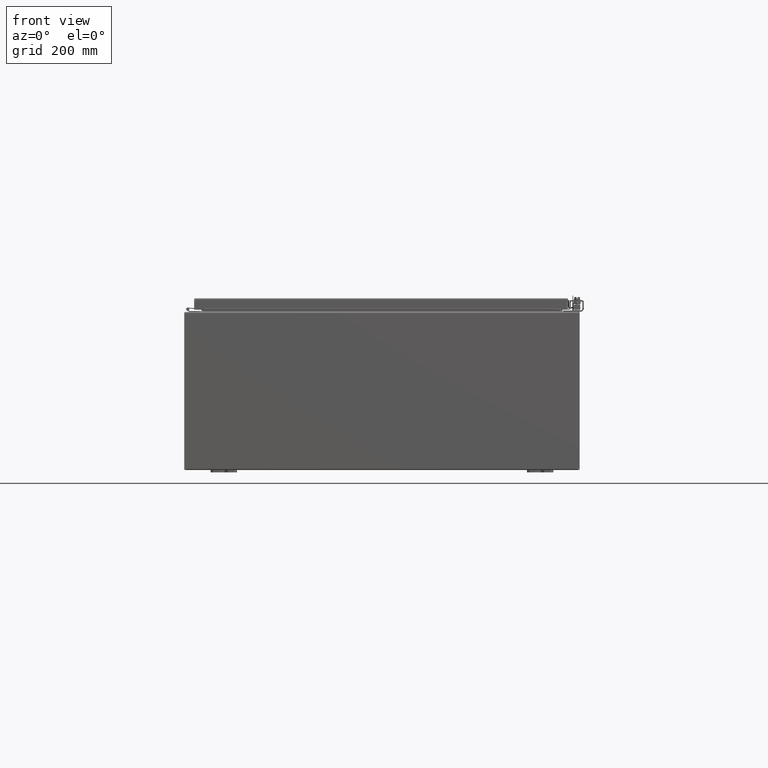
[diagram: clean part render]
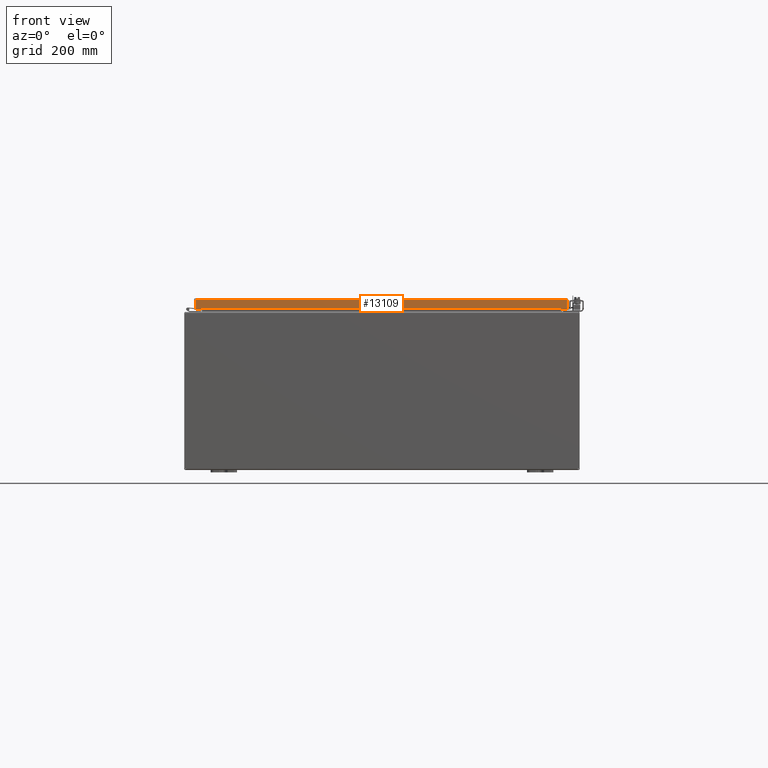
[diagram: same view with one face highlighted and labeled with its STEP entity id]
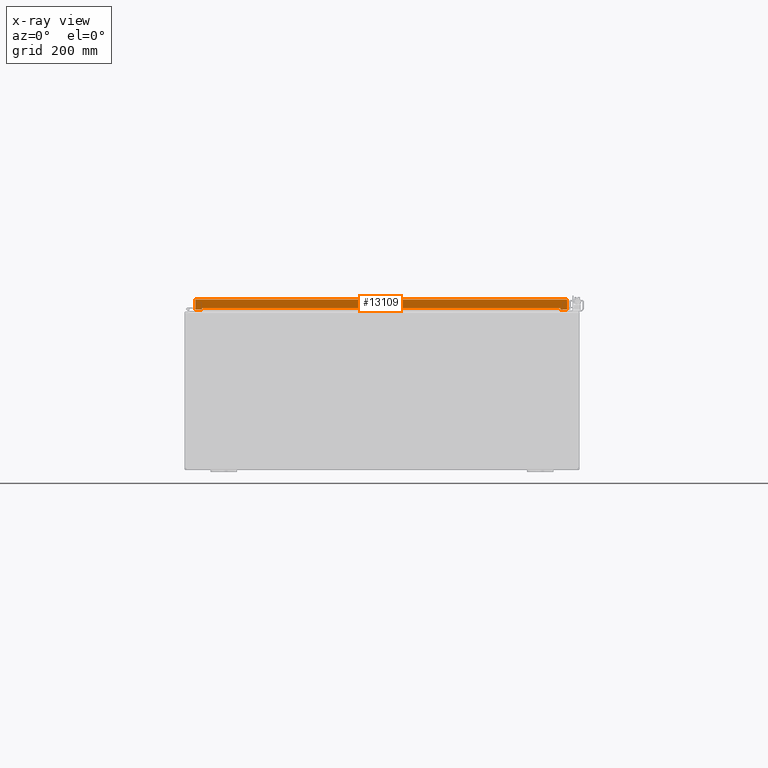
[diagram: x-ray of the same camera — body ghosted, the highlighted face saturated]
A machine part, front view. The second image highlights one B-rep face of the part: STEP entity #13109.
The next image is the same camera in x-ray: the body ghosted, the highlighted face saturated — about 0% of this face is hidden behind the body in this view.
In plain terms, the highlighted planar face has unit normal (-0, 1, -0).
Its self-contained STEP definition (entity closure, byte-faithful):
#11994=CARTESIAN_POINT('',(-13.602451456543964,20.093750000000043,0.76974999999999));
#11995=VERTEX_POINT('',#11994);
#12020=CARTESIAN_POINT('',(13.602451456543964,20.093750000000043,0.769749999999996));
#12021=VERTEX_POINT('',#12020);
#12076=CARTESIAN_POINT('',(-13.602451456543964,20.093750000000043,0.76974999999999));
#12077=DIRECTION('',(1.0,0.0,0.0));
#12078=VECTOR('',#12077,27.204902913087928);
#12079=LINE('',#12076,#12078);
#12080=EDGE_CURVE('',#11995,#12021,#12079,.T.);
#12832=CARTESIAN_POINT('',(13.602451456543964,20.093750000000043,0.769549999999996));
#12833=VERTEX_POINT('',#12832);
#12840=CARTESIAN_POINT('',(13.602451456543964,20.093750000000046,0.769749999999996));
#12841=DIRECTION('',(0.0,0.0,-1.0));
#12842=VECTOR('',#12841,0.0002);
#12843=LINE('',#12840,#12842);
#12844=EDGE_CURVE('',#12021,#12833,#12843,.T.);
#12864=CARTESIAN_POINT('',(13.602651456543965,20.09375000000005,0.874999999999997));
#12865=VERTEX_POINT('',#12864);
#12872=CARTESIAN_POINT('',(13.602651456543965,20.093750000000043,0.769549999999996));
#12873=VERTEX_POINT('',#12872);
#12874=CARTESIAN_POINT('',(13.602651456543965,20.093750000000046,0.769549999999996));
#12875=DIRECTION('',(0.0,0.0,1.0));
#12876=VECTOR('',#12875,0.105450000000001);
#12877=LINE('',#12874,#12876);
#12878=EDGE_CURVE('',#12873,#12865,#12877,.T.);
#12901=CARTESIAN_POINT('',(13.602451456543964,20.093750000000043,0.769549999999996));
#12902=DIRECTION('',(1.0,0.0,0.0));
#12903=VECTOR('',#12902,0.000200000000003);
#12904=LINE('',#12901,#12903);
#12905=EDGE_CURVE('',#12833,#12873,#12904,.T.);
#12991=CARTESIAN_POINT('',(-13.602651456543965,20.093750000000043,0.76954999999999));
#12992=VERTEX_POINT('',#12991);
#12999=CARTESIAN_POINT('',(-13.602651456543965,20.09375000000005,0.874999999999991));
#13000=VERTEX_POINT('',#12999);
#13001=CARTESIAN_POINT('',(-13.602651456543965,20.093750000000053,0.874999999999991));
#13002=DIRECTION('',(0.0,0.0,-1.0));
#13003=VECTOR('',#13002,0.105450000000001);
#13004=LINE('',#13001,#13003);
#13005=EDGE_CURVE('',#13000,#12992,#13004,.T.);
#13022=CARTESIAN_POINT('',(-13.602451456543964,20.093750000000043,0.76954999999999));
#13023=VERTEX_POINT('',#13022);
#13024=CARTESIAN_POINT('',(-13.602451456543964,20.093750000000046,0.76954999999999));
#13025=DIRECTION('',(0.0,0.0,1.0));
#13026=VECTOR('',#13025,0.0002);
#13027=LINE('',#13024,#13026);
#13028=EDGE_CURVE('',#13023,#11995,#13027,.T.);
#13047=CARTESIAN_POINT('',(-13.602651456543967,20.093750000000043,0.76954999999999));
#13048=DIRECTION('',(1.0,0.0,0.0));
#13049=VECTOR('',#13048,0.000200000000003);
#13050=LINE('',#13047,#13049);
#13051=EDGE_CURVE('',#12992,#13023,#13050,.T.);
#13057=CARTESIAN_POINT('',(-0.046950708161295,20.093750000000025,0.440146161915874));
#13058=DIRECTION('',(0.0,-1.0,0.0));
#13059=DIRECTION('',(1.0,0.0,0.0));
#13060=AXIS2_PLACEMENT_3D('',#13057,#13058,#13059);
#13061=PLANE('',#13060);
#13062=ORIENTED_EDGE('',*,*,#12878,.T.);
#13063=CARTESIAN_POINT('',(14.102451456543966,20.09375000000005,0.874999999999996));
#13064=VERTEX_POINT('',#13063);
#13065=CARTESIAN_POINT('',(14.102451456543966,20.09375000000005,0.874999999999996));
#13066=DIRECTION('',(-1.0,0.0,0.0));
#13067=VECTOR('',#13066,0.4998);
#13068=LINE('',#13065,#13067);
#13069=EDGE_CURVE('',#13064,#12865,#13068,.T.);
#13070=ORIENTED_EDGE('',*,*,#13069,.F.);
#13071=CARTESIAN_POINT('',(14.102451456543966,20.093750000000004,0.105249999999996));
#13072=VERTEX_POINT('',#13071);
#13073=CARTESIAN_POINT('',(14.102451456543966,20.09375,0.105249999999996));
#13074=DIRECTION('',(0.0,0.0,1.0));
#13075=VECTOR('',#13074,0.76975);
#13076=LINE('',#13073,#13075);
#13077=EDGE_CURVE('',#13072,#13064,#13076,.T.);
#13078=ORIENTED_EDGE('',*,*,#13077,.F.);
#13079=CARTESIAN_POINT('',(-14.102451456543957,20.09375,0.105249999999994));
#13080=VERTEX_POINT('',#13079);
#13081=CARTESIAN_POINT('',(14.102451456543962,20.093750000000004,0.105249999999993));
#13082=DIRECTION('',(-1.0,0.0,0.0));
#13083=VECTOR('',#13082,28.204902913087921);
#13084=LINE('',#13081,#13083);
#13085=EDGE_CURVE('',#13072,#13080,#13084,.T.);
#13086=ORIENTED_EDGE('',*,*,#13085,.T.);
#13087=CARTESIAN_POINT('',(-14.102451456543966,20.09375000000005,0.874999999999991));
#13088=VERTEX_POINT('',#13087);
#13089=CARTESIAN_POINT('',(-14.102451456543966,20.093750000000053,0.874999999999991));
#13090=DIRECTION('',(0.0,0.0,-1.0));
#13091=VECTOR('',#13090,0.769749999999997);
#13092=LINE('',#13089,#13091);
#13093=EDGE_CURVE('',#13088,#13080,#13092,.T.);
#13094=ORIENTED_EDGE('',*,*,#13093,.F.);
#13095=CARTESIAN_POINT('',(-13.602651456543965,20.09375000000005,0.87499999999999));
#13096=DIRECTION('',(-1.0,0.0,0.0));
#13097=VECTOR('',#13096,0.4998);
#13098=LINE('',#13095,#13097);
#13099=EDGE_CURVE('',#13000,#13088,#13098,.T.);
#13100=ORIENTED_EDGE('',*,*,#13099,.F.);
#13101=ORIENTED_EDGE('',*,*,#13005,.T.);
#13102=ORIENTED_EDGE('',*,*,#13051,.T.);
#13103=ORIENTED_EDGE('',*,*,#13028,.T.);
#13104=ORIENTED_EDGE('',*,*,#12080,.T.);
#13105=ORIENTED_EDGE('',*,*,#12844,.T.);
#13106=ORIENTED_EDGE('',*,*,#12905,.T.);
#13107=EDGE_LOOP('',(#13062,#13070,#13078,#13086,#13094,#13100,#13101,#13102,#13103,#13104,#13105,#13106));
#13108=FACE_OUTER_BOUND('',#13107,.T.);
#13109=ADVANCED_FACE('',(#13108),#13061,.F.);